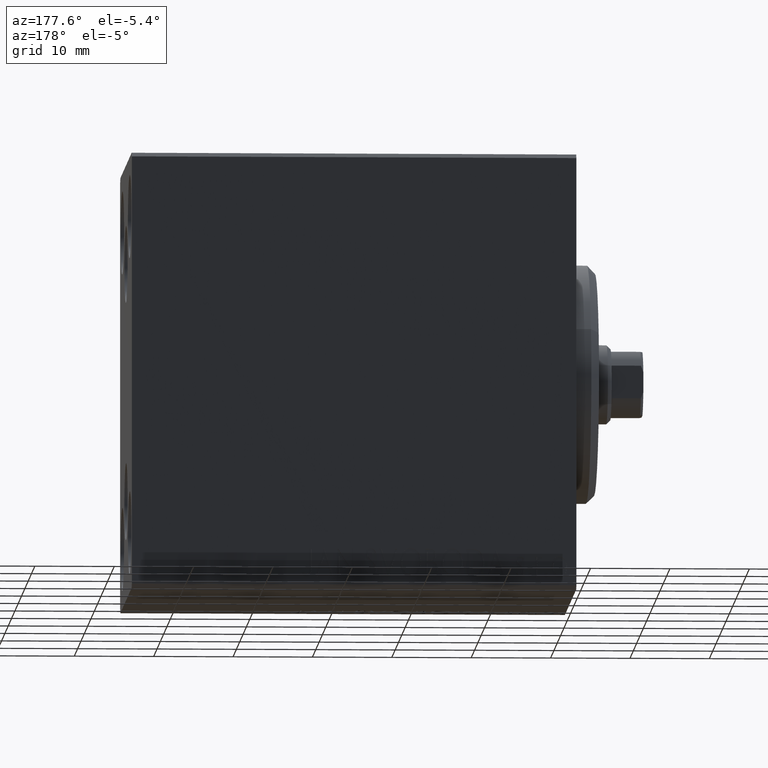
[diagram: clean part render]
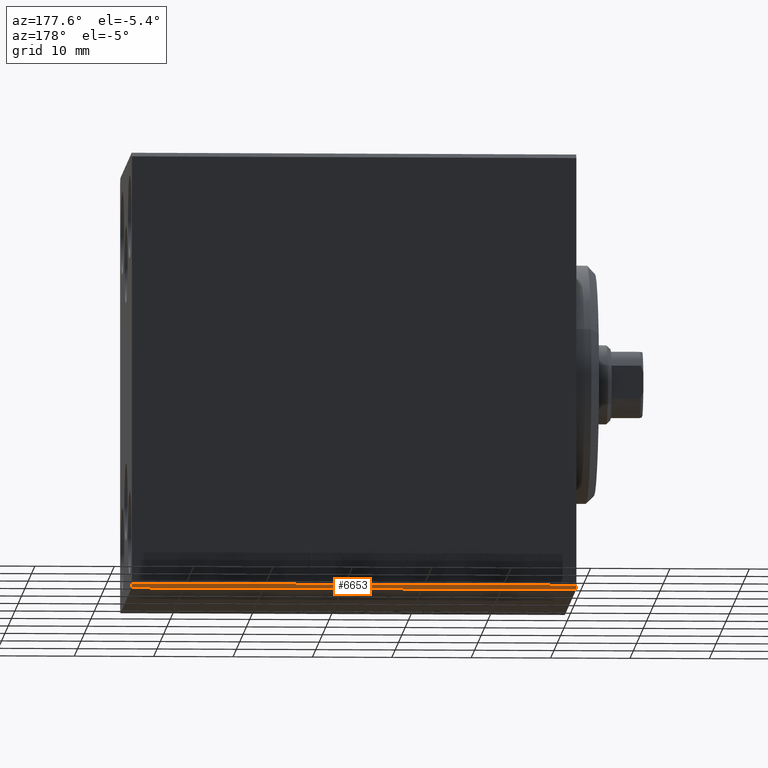
[diagram: same view with one face highlighted and labeled with its STEP entity id]
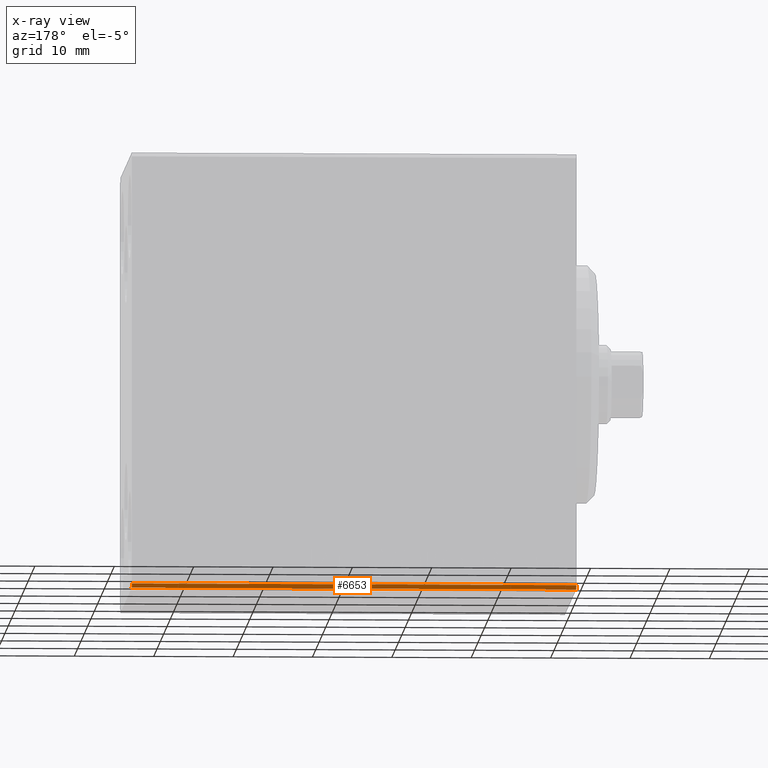
[diagram: x-ray of the same camera — body ghosted, the highlighted face saturated]
A machine part, auxiliary view. The second image highlights one B-rep face of the part: STEP entity #6653.
The next image is the same camera in x-ray: the body ghosted, the highlighted face saturated — about 0% of this face is hidden behind the body in this view.
In plain terms, the highlighted planar face has unit normal (0, -0.7071, 0.7071).
Its self-contained STEP definition (entity closure, byte-faithful):
#1495 = ORIENTED_EDGE ( 'NONE', *, *, #41158, .F. ) ;
#2486 = VERTEX_POINT ( 'NONE', #12079 ) ;
#5250 = VECTOR ( 'NONE', #30738, 1000.000000000000114 ) ;
#5567 = VECTOR ( 'NONE', #7396, 1000.000000000000000 ) ;
#6316 = CARTESIAN_POINT ( 'NONE',  ( 0.000000000000000000, 17.50000000000000711, -27.00000000000000355 ) ) ;
#6653 = ADVANCED_FACE ( 'NONE', ( #21775 ), #35341, .F. ) ;
#7396 = DIRECTION ( 'NONE',  ( -1.000000000000000000, 0.000000000000000000, 0.000000000000000000 ) ) ;
#7984 = VECTOR ( 'NONE', #9916, 1000.000000000000000 ) ;
#8688 = DIRECTION ( 'NONE',  ( -1.000000000000000000, 0.000000000000000000, 0.000000000000000000 ) ) ;
#8718 = VECTOR ( 'NONE', #25521, 1000.000000000000114 ) ;
#9916 = DIRECTION ( 'NONE',  ( 1.000000000000000000, 0.000000000000000000, 0.000000000000000000 ) ) ;
#10927 = VERTEX_POINT ( 'NONE', #18879 ) ;
#11572 = EDGE_CURVE ( 'NONE', #10927, #26569, #37599, .T. ) ;
#12079 = CARTESIAN_POINT ( 'NONE',  ( 56.00000000000000000, 17.00000000000000711, -27.50000000000000355 ) ) ;
#12332 = ORIENTED_EDGE ( 'NONE', *, *, #11572, .F. ) ;
#12797 = CARTESIAN_POINT ( 'NONE',  ( 56.00000000000000000, 17.00000000000000711, -27.50000000000000355 ) ) ;
#13173 = EDGE_LOOP ( 'NONE', ( #41152, #31671, #1495, #12332 ) ) ;
#14878 = LINE ( 'NONE', #42633, #8718 ) ;
#18879 = CARTESIAN_POINT ( 'NONE',  ( 56.00000000000000000, 17.50000000000000711, -27.00000000000000355 ) ) ;
#19894 = LINE ( 'NONE', #12797, #7984 ) ;
#21775 = FACE_OUTER_BOUND ( 'NONE', #13173, .T. ) ;
#22453 = AXIS2_PLACEMENT_3D ( 'NONE', #25326, #42882, #8688 ) ;
#22796 = CARTESIAN_POINT ( 'NONE',  ( 0.000000000000000000, 17.00000000000000711, -27.50000000000000355 ) ) ;
#25326 = CARTESIAN_POINT ( 'NONE',  ( 56.00000000000000000, 17.50000000000000711, -27.00000000000000355 ) ) ;
#25521 = DIRECTION ( 'NONE',  ( -0.000000000000000000, 0.7071067811865474617, 0.7071067811865474617 ) ) ;
#26569 = VERTEX_POINT ( 'NONE', #6316 ) ;
#27366 = VERTEX_POINT ( 'NONE', #22796 ) ;
#30268 = CARTESIAN_POINT ( 'NONE',  ( 56.00000000000000000, 17.50000000000000711, -27.00000000000000355 ) ) ;
#30292 = LINE ( 'NONE', #30506, #5250 ) ;
#30506 = CARTESIAN_POINT ( 'NONE',  ( 0.000000000000000000, 17.50000000000000711, -27.00000000000000355 ) ) ;
#30738 = DIRECTION ( 'NONE',  ( 0.000000000000000000, -0.7071067811865474617, -0.7071067811865474617 ) ) ;
#31671 = ORIENTED_EDGE ( 'NONE', *, *, #37848, .F. ) ;
#33862 = EDGE_CURVE ( 'NONE', #2486, #10927, #14878, .T. ) ;
#35341 = PLANE ( 'NONE',  #22453 ) ;
#37599 = LINE ( 'NONE', #30268, #5567 ) ;
#37848 = EDGE_CURVE ( 'NONE', #27366, #2486, #19894, .T. ) ;
#41152 = ORIENTED_EDGE ( 'NONE', *, *, #33862, .F. ) ;
#41158 = EDGE_CURVE ( 'NONE', #26569, #27366, #30292, .T. ) ;
#42633 = CARTESIAN_POINT ( 'NONE',  ( 56.00000000000000000, 22.25000000000000711, -22.25000000000000711 ) ) ;
#42882 = DIRECTION ( 'NONE',  ( 0.000000000000000000, -0.7071067811865475727, 0.7071067811865475727 ) ) ;